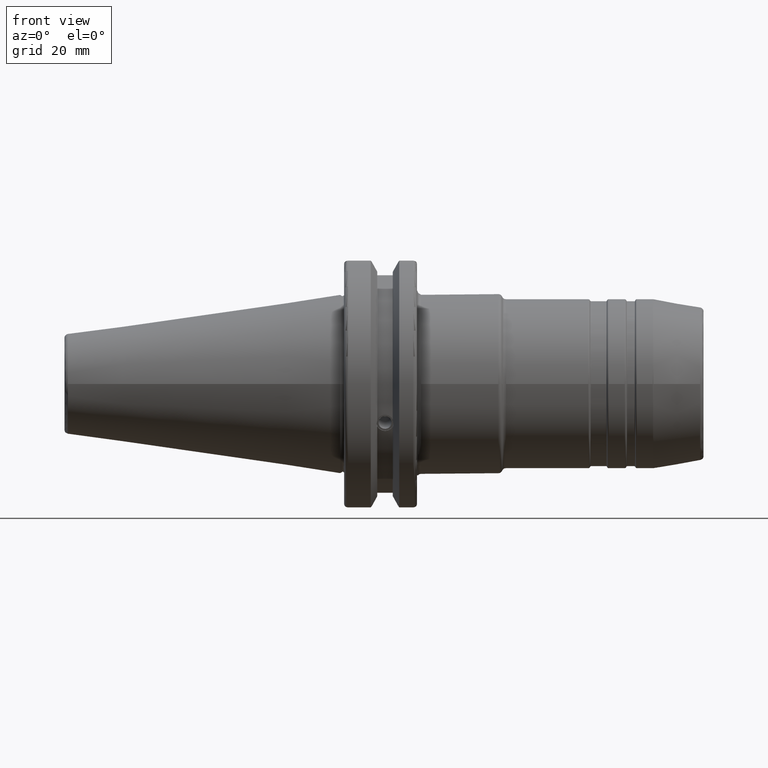
[diagram: clean part render]
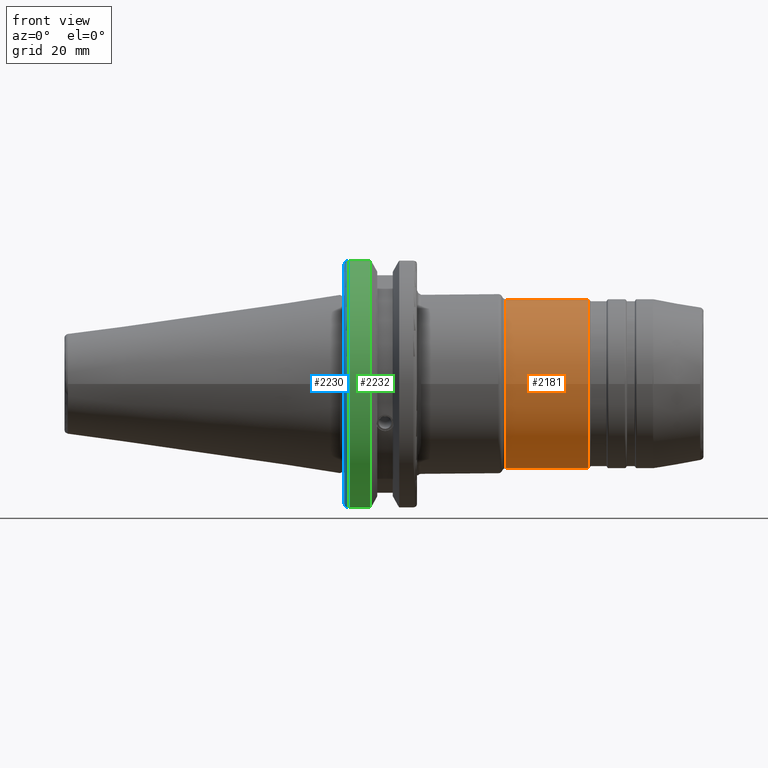
[diagram: same view with three faces highlighted in distinct colors, each labeled with its STEP entity id]
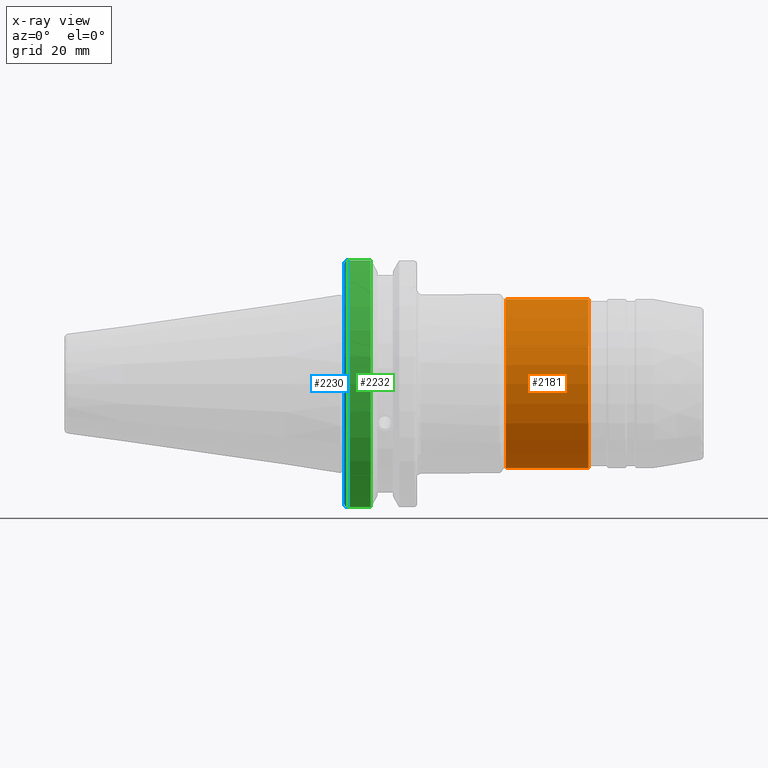
[diagram: x-ray of the same camera — body ghosted, the three highlighted faces saturated]
A machine part, front view with three faces highlighted in distinct colors.
The next image is the same camera in x-ray (body ghosted, the three faces saturated) — at least one of them is partly hidden behind the body in this view.
Their STEP definitions:

[orange] entity #2181 — the highlighted cylindrical surface (bore or boss wall) has radius 21 mm, axis along (1, 0, 0).
#195=FACE_OUTER_BOUND('',#307,.T.);
#307=EDGE_LOOP('',(#1563,#1564,#1565,#1566,#1567,#1568,#1569,#1570));
#422=LINE('',#3562,#527);
#527=VECTOR('',#2787,21.);
#684=CIRCLE('',#2374,21.);
#685=CIRCLE('',#2375,21.);
#686=CIRCLE('',#2376,21.);
#687=CIRCLE('',#2378,21.);
#688=CIRCLE('',#2379,21.);
#689=CIRCLE('',#2380,21.);
#862=VERTEX_POINT('',#3553);
#863=VERTEX_POINT('',#3555);
#864=VERTEX_POINT('',#3557);
#865=VERTEX_POINT('',#3561);
#866=VERTEX_POINT('',#3563);
#867=VERTEX_POINT('',#3565);
#1135=EDGE_CURVE('',#862,#863,#684,.T.);
#1136=EDGE_CURVE('',#863,#864,#685,.T.);
#1137=EDGE_CURVE('',#864,#862,#686,.T.);
#1138=EDGE_CURVE('',#863,#865,#422,.T.);
#1139=EDGE_CURVE('',#866,#865,#687,.T.);
#1140=EDGE_CURVE('',#867,#866,#688,.T.);
#1141=EDGE_CURVE('',#865,#867,#689,.T.);
#1563=ORIENTED_EDGE('',*,*,#1137,.F.);
#1564=ORIENTED_EDGE('',*,*,#1136,.F.);
#1565=ORIENTED_EDGE('',*,*,#1138,.T.);
#1566=ORIENTED_EDGE('',*,*,#1139,.F.);
#1567=ORIENTED_EDGE('',*,*,#1140,.F.);
#1568=ORIENTED_EDGE('',*,*,#1141,.F.);
#1569=ORIENTED_EDGE('',*,*,#1138,.F.);
#1570=ORIENTED_EDGE('',*,*,#1135,.F.);
#2134=CYLINDRICAL_SURFACE('',#2377,21.);
#2181=ADVANCED_FACE('',(#195),#2134,.T.);
#2374=AXIS2_PLACEMENT_3D('',#3556,#2779,#2780);
#2375=AXIS2_PLACEMENT_3D('',#3558,#2781,#2782);
#2376=AXIS2_PLACEMENT_3D('',#3559,#2783,#2784);
#2377=AXIS2_PLACEMENT_3D('',#3560,#2785,#2786);
#2378=AXIS2_PLACEMENT_3D('',#3564,#2788,#2789);
#2379=AXIS2_PLACEMENT_3D('',#3566,#2790,#2791);
#2380=AXIS2_PLACEMENT_3D('',#3567,#2792,#2793);
#2779=DIRECTION('center_axis',(1.,0.,0.));
#2780=DIRECTION('ref_axis',(0.,-1.,1.83697019872103E-16));
#2781=DIRECTION('center_axis',(1.,0.,0.));
#2782=DIRECTION('ref_axis',(0.,-1.,1.83697019872103E-16));
#2783=DIRECTION('center_axis',(1.,0.,0.));
#2784=DIRECTION('ref_axis',(0.,-1.,1.83697019872103E-16));
#2785=DIRECTION('center_axis',(1.,0.,0.));
#2786=DIRECTION('ref_axis',(0.,1.,0.));
#2787=DIRECTION('',(-1.,0.,0.));
#2788=DIRECTION('center_axis',(-1.,0.,0.));
#2789=DIRECTION('ref_axis',(0.,-1.,1.83697019872103E-16));
#2790=DIRECTION('center_axis',(-1.,0.,0.));
#2791=DIRECTION('ref_axis',(0.,-1.,1.83697019872103E-16));
#2792=DIRECTION('center_axis',(-1.,0.,0.));
#2793=DIRECTION('ref_axis',(0.,-1.,1.83697019872103E-16));
#3553=CARTESIAN_POINT('',(61.4803847577293,-2.57175827820944E-15,21.));
#3555=CARTESIAN_POINT('',(61.4803847577293,-21.,-2.57175827820944E-15));
#3556=CARTESIAN_POINT('Origin',(61.4803847577293,0.,0.));
#3557=CARTESIAN_POINT('',(61.4803847577293,21.,-1.28587913910472E-15));
#3558=CARTESIAN_POINT('Origin',(61.4803847577293,0.,0.));
#3559=CARTESIAN_POINT('Origin',(61.4803847577293,0.,0.));
#3560=CARTESIAN_POINT('Origin',(51.1056624327026,0.,0.));
#3561=CARTESIAN_POINT('',(41.0773502691896,-21.,-2.57175827820944E-15));
#3562=CARTESIAN_POINT('',(51.1056624327026,-21.,-2.57175827820944E-15));
#3563=CARTESIAN_POINT('',(41.0773502691896,21.,-6.4293956955236E-15));
#3564=CARTESIAN_POINT('Origin',(41.0773502691896,0.,0.));
#3565=CARTESIAN_POINT('',(41.0773502691896,-2.57175827820944E-15,21.));
#3566=CARTESIAN_POINT('Origin',(41.0773502691896,0.,0.));
#3567=CARTESIAN_POINT('Origin',(41.0773502691896,0.,0.));

[blue] entity #2230 — the highlighted toroidal blend (fillet) surface has major radius 30.75 mm and minor (blend) radius 1 mm.
#104=TOROIDAL_SURFACE('',#2520,30.75,1.);
#169=B_SPLINE_CURVE_WITH_KNOTS('',3,(#4151,#4152,#4153,#4154,#4155,#4156),
 .UNSPECIFIED.,.F.,.F.,(4,2,4),(0.0977210450333167,0.111963554372601,0.150804064902975),
 .UNSPECIFIED.);
#170=B_SPLINE_CURVE_WITH_KNOTS('',3,(#4178,#4179,#4180,#4181,#4182,#4183),
 .UNSPECIFIED.,.F.,.F.,(4,2,4),(0.452741795590859,0.491582306121234,0.505824815460518),
 .UNSPECIFIED.);
#171=B_SPLINE_CURVE_WITH_KNOTS('',3,(#4189,#4190,#4191,#4192,#4193,#4194,
#4195,#4196),.UNSPECIFIED.,.F.,.F.,(4,2,2,4),(-0.104180282751876,-0.0729784742461442,
-0.0343524753874977,0.),.UNSPECIFIED.);
#172=B_SPLINE_CURVE_WITH_KNOTS('',3,(#4199,#4200,#4201,#4202,#4203,#4204,
#4205,#4206),.UNSPECIFIED.,.F.,.F.,(4,2,2,4),(0.,0.0343524753874978,0.0729784742461443,
0.104180282751876),.UNSPECIFIED.);
#244=FACE_OUTER_BOUND('',#363,.T.);
#363=EDGE_LOOP('',(#1899,#1900,#1901,#1902,#1903,#1904));
#763=CIRCLE('',#2521,31.75);
#764=CIRCLE('',#2522,30.75);
#1000=VERTEX_POINT('',#4148);
#1001=VERTEX_POINT('',#4150);
#1007=VERTEX_POINT('',#4175);
#1008=VERTEX_POINT('',#4177);
#1010=VERTEX_POINT('',#4188);
#1011=VERTEX_POINT('',#4197);
#1317=EDGE_CURVE('',#1001,#1000,#169,.T.);
#1327=EDGE_CURVE('',#1008,#1007,#170,.T.);
#1330=EDGE_CURVE('',#1007,#1010,#171,.T.);
#1331=EDGE_CURVE('',#1010,#1011,#763,.T.);
#1332=EDGE_CURVE('',#1011,#1001,#172,.T.);
#1333=EDGE_CURVE('',#1000,#1008,#764,.T.);
#1899=ORIENTED_EDGE('',*,*,#1330,.T.);
#1900=ORIENTED_EDGE('',*,*,#1331,.T.);
#1901=ORIENTED_EDGE('',*,*,#1332,.T.);
#1902=ORIENTED_EDGE('',*,*,#1317,.T.);
#1903=ORIENTED_EDGE('',*,*,#1333,.T.);
#1904=ORIENTED_EDGE('',*,*,#1327,.T.);
#2230=ADVANCED_FACE('',(#244),#104,.T.);
#2520=AXIS2_PLACEMENT_3D('',#4187,#3132,#3133);
#2521=AXIS2_PLACEMENT_3D('',#4198,#3134,#3135);
#2522=AXIS2_PLACEMENT_3D('',#4207,#3136,#3137);
#3132=DIRECTION('center_axis',(1.,0.,0.));
#3133=DIRECTION('ref_axis',(0.,0.,-1.));
#3134=DIRECTION('center_axis',(-1.,0.,0.));
#3135=DIRECTION('ref_axis',(0.,-1.,1.60812264967664E-16));
#3136=DIRECTION('center_axis',(1.,0.,0.));
#3137=DIRECTION('ref_axis',(0.,-1.,1.60812264967664E-16));
#4148=CARTESIAN_POINT('',(1.,-8.18999999999999,29.6392712461019));
#4150=CARTESIAN_POINT('',(1.14412772509028,-8.19,30.1755016258903));
#4151=CARTESIAN_POINT('Ctrl Pts',(1.14412772509028,-8.19,30.1755016258903));
#4152=CARTESIAN_POINT('Ctrl Pts',(1.11818362718666,-8.19,30.131014531546));
#4153=CARTESIAN_POINT('Ctrl Pts',(1.09603565282437,-8.19,30.0852355256475));
#4154=CARTESIAN_POINT('Ctrl Pts',(1.02951443291695,-8.19,29.9212724384851));
#4155=CARTESIAN_POINT('Ctrl Pts',(1.,-8.19,29.7687396145364));
#4156=CARTESIAN_POINT('Ctrl Pts',(1.,-8.19,29.6392712461019));
#4175=CARTESIAN_POINT('',(1.14412772509028,-8.19,-30.1755016258903));
#4177=CARTESIAN_POINT('',(1.,-8.19,-29.6392712461019));
#4178=CARTESIAN_POINT('Ctrl Pts',(1.,-8.19,-29.6392712461019));
#4179=CARTESIAN_POINT('Ctrl Pts',(1.,-8.19,-29.7687396145364));
#4180=CARTESIAN_POINT('Ctrl Pts',(1.02951443291695,-8.19,-29.9212724384851));
#4181=CARTESIAN_POINT('Ctrl Pts',(1.09603565282437,-8.19,-30.0852355256475));
#4182=CARTESIAN_POINT('Ctrl Pts',(1.11818362718666,-8.19,-30.131014531546));
#4183=CARTESIAN_POINT('Ctrl Pts',(1.14412772509028,-8.19,-30.1755016258903));
#4187=CARTESIAN_POINT('Origin',(2.,0.,0.));
#4188=CARTESIAN_POINT('',(2.,-8.67204822802685,-30.5427254764662));
#4189=CARTESIAN_POINT('Ctrl Pts',(1.14412772509028,-8.19,-30.1755016258903));
#4190=CARTESIAN_POINT('Ctrl Pts',(1.19255369570113,-8.27036828330781,-30.2367261024977));
#4191=CARTESIAN_POINT('Ctrl Pts',(1.25732973376814,-8.34909446036478,-30.2966996242308));
#4192=CARTESIAN_POINT('Ctrl Pts',(1.41032758094931,-8.48862804755884,-30.4029961692546));
#4193=CARTESIAN_POINT('Ctrl Pts',(1.53155857052286,-8.56482138642532,-30.4610401774263));
#4194=CARTESIAN_POINT('Ctrl Pts',(1.75168295662254,-8.6471881193939,-30.5237870709558));
#4195=CARTESIAN_POINT('Ctrl Pts',(1.88549174870834,-8.67204822802686,-30.5427254764662));
#4196=CARTESIAN_POINT('Ctrl Pts',(2.,-8.67204822802686,-30.5427254764662));
#4197=CARTESIAN_POINT('',(2.,-8.67204822802685,30.5427254764662));
#4198=CARTESIAN_POINT('Origin',(2.,0.,0.));
#4199=CARTESIAN_POINT('Ctrl Pts',(2.,-8.67204822802686,30.5427254764662));
#4200=CARTESIAN_POINT('Ctrl Pts',(1.88549174870834,-8.67204822802686,30.5427254764662));
#4201=CARTESIAN_POINT('Ctrl Pts',(1.75168295662254,-8.64718811939389,30.5237870709558));
#4202=CARTESIAN_POINT('Ctrl Pts',(1.53155857052286,-8.56482138642532,30.4610401774263));
#4203=CARTESIAN_POINT('Ctrl Pts',(1.41032758094931,-8.48862804755883,30.4029961692546));
#4204=CARTESIAN_POINT('Ctrl Pts',(1.25732973376814,-8.34909446036477,30.2966996242308));
#4205=CARTESIAN_POINT('Ctrl Pts',(1.19255369570113,-8.2703682833078,30.2367261024977));
#4206=CARTESIAN_POINT('Ctrl Pts',(1.14412772509028,-8.19,30.1755016258903));
#4207=CARTESIAN_POINT('Origin',(1.,0.,0.));

[green] entity #2232 — the highlighted cylindrical surface (partial cylindrical patch) has radius 31.75 mm, axis along (1, 0, 0).
#246=FACE_OUTER_BOUND('',#365,.T.);
#365=EDGE_LOOP('',(#1909,#1910,#1911,#1912));
#483=LINE('',#4210,#588);
#484=LINE('',#4216,#589);
#588=VECTOR('',#3140,10.);
#589=VECTOR('',#3143,10.);
#763=CIRCLE('',#2521,31.75);
#765=CIRCLE('',#2525,31.75);
#1010=VERTEX_POINT('',#4188);
#1011=VERTEX_POINT('',#4197);
#1012=VERTEX_POINT('',#4209);
#1013=VERTEX_POINT('',#4215);
#1331=EDGE_CURVE('',#1010,#1011,#763,.T.);
#1334=EDGE_CURVE('',#1011,#1012,#483,.T.);
#1336=EDGE_CURVE('',#1013,#1010,#484,.T.);
#1337=EDGE_CURVE('',#1012,#1013,#765,.T.);
#1909=ORIENTED_EDGE('',*,*,#1331,.F.);
#1910=ORIENTED_EDGE('',*,*,#1336,.F.);
#1911=ORIENTED_EDGE('',*,*,#1337,.F.);
#1912=ORIENTED_EDGE('',*,*,#1334,.F.);
#2153=CYLINDRICAL_SURFACE('',#2524,31.75);
#2232=ADVANCED_FACE('',(#246),#2153,.T.);
#2521=AXIS2_PLACEMENT_3D('',#4198,#3134,#3135);
#2524=AXIS2_PLACEMENT_3D('',#4214,#3141,#3142);
#2525=AXIS2_PLACEMENT_3D('',#4217,#3144,#3145);
#3134=DIRECTION('center_axis',(-1.,0.,0.));
#3135=DIRECTION('ref_axis',(0.,-1.,1.60812264967664E-16));
#3140=DIRECTION('',(1.,0.,0.));
#3141=DIRECTION('center_axis',(1.,0.,0.));
#3142=DIRECTION('ref_axis',(0.,-1.,1.22464679914735E-16));
#3143=DIRECTION('',(-1.,0.,0.));
#3144=DIRECTION('center_axis',(1.,0.,0.));
#3145=DIRECTION('ref_axis',(0.,0.,-1.));
#4188=CARTESIAN_POINT('',(2.,-8.67204822802685,-30.5427254764662));
#4197=CARTESIAN_POINT('',(2.,-8.67204822802685,30.5427254764662));
#4198=CARTESIAN_POINT('Origin',(2.,0.,0.));
#4209=CARTESIAN_POINT('',(7.60793323092436,-8.67204822802685,30.5427254764662));
#4210=CARTESIAN_POINT('',(4.30396661546218,-8.67204822802685,30.5427254764662));
#4214=CARTESIAN_POINT('Origin',(4.30396661546218,0.,0.));
#4215=CARTESIAN_POINT('',(7.60793323092436,-8.67204822802685,-30.5427254764662));
#4216=CARTESIAN_POINT('',(4.30396661546218,-8.67204822802685,-30.5427254764662));
#4217=CARTESIAN_POINT('Origin',(7.60793323092436,0.,0.));